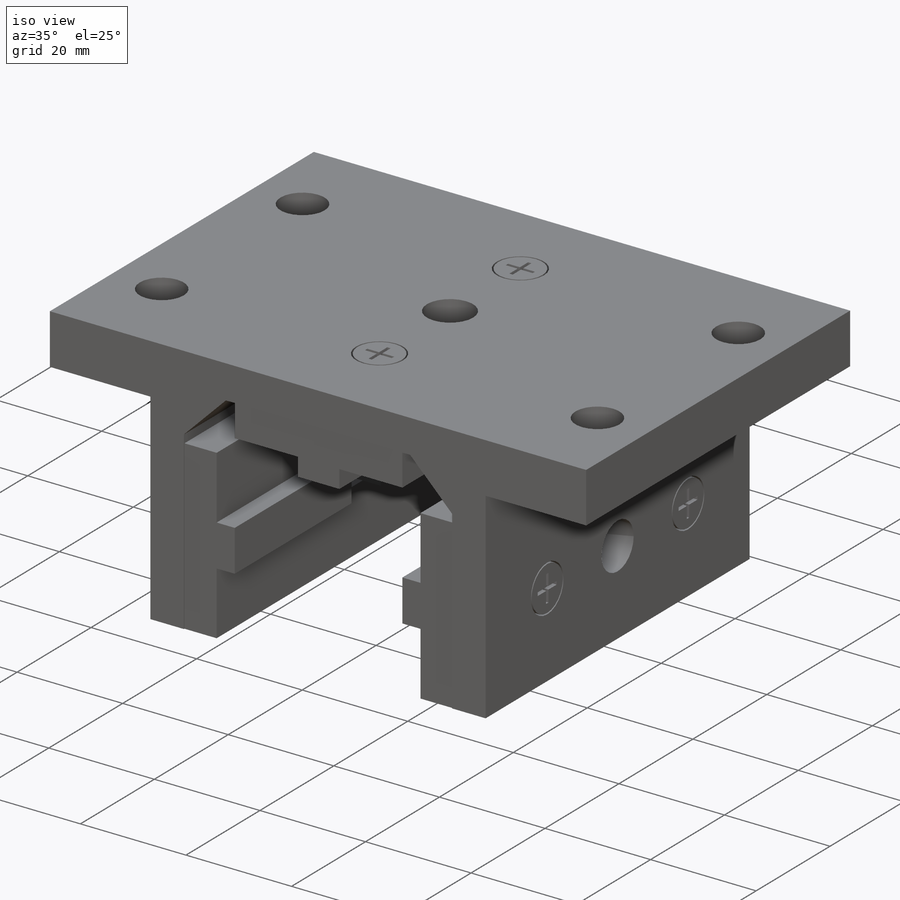
[diagram: iso view]
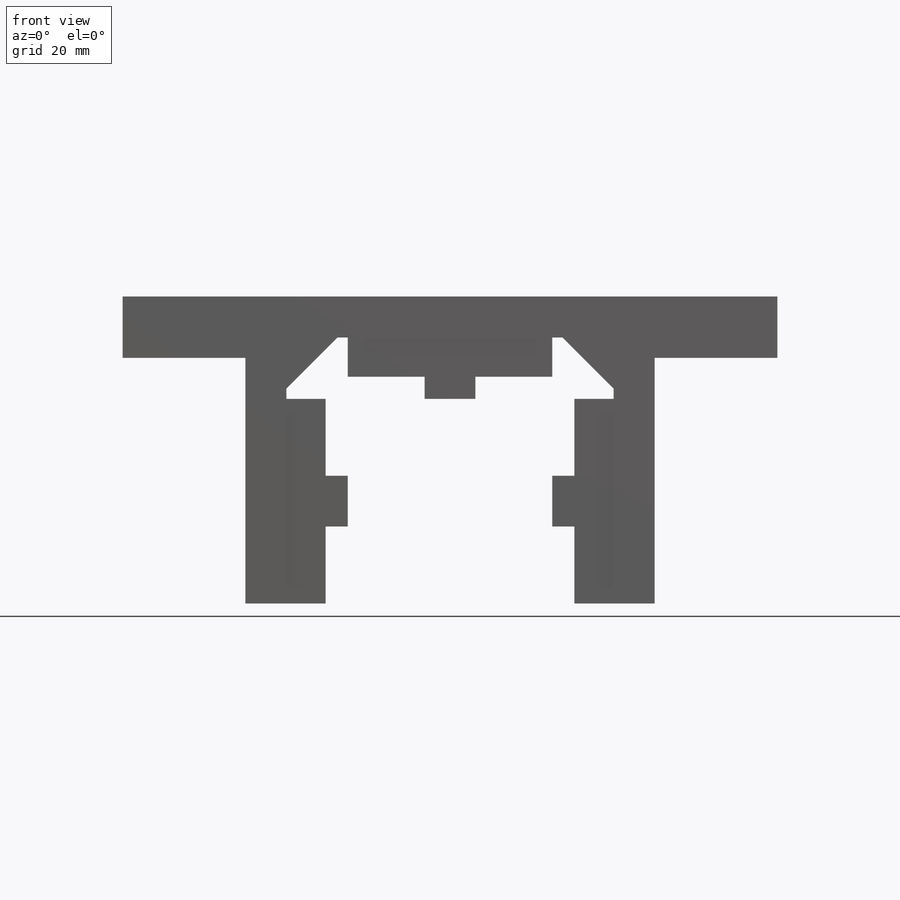
[diagram: front view]
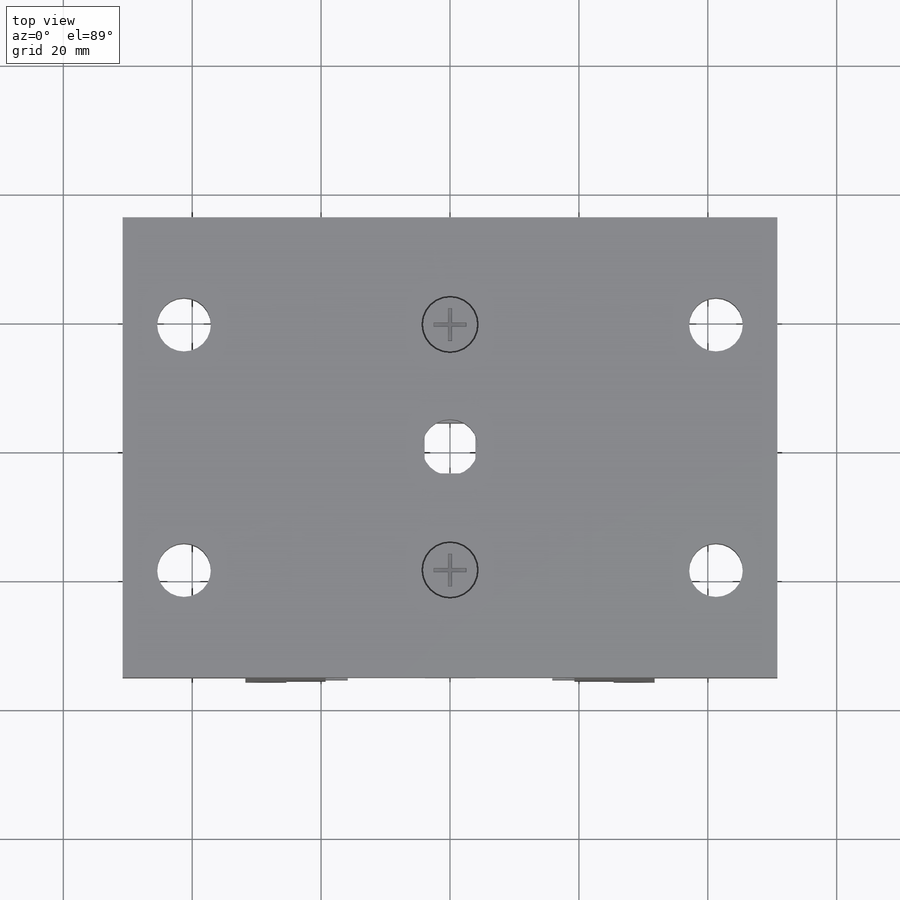
[diagram: top view]
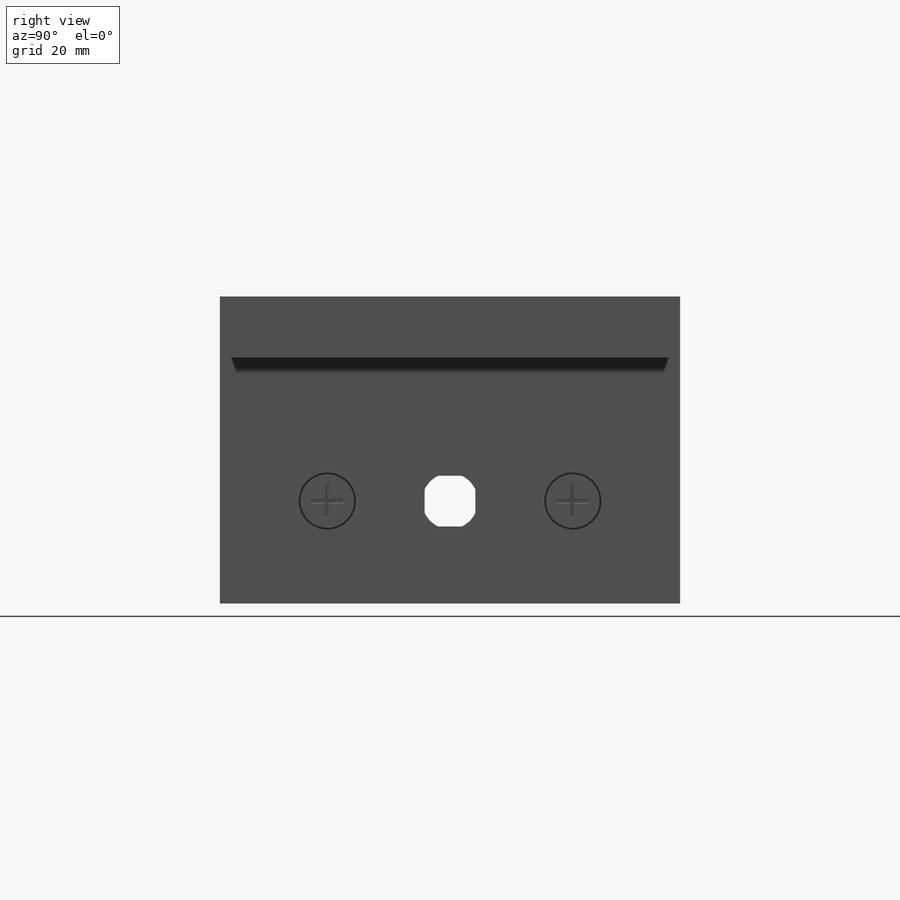
[diagram: right view]
SOLIDWORKS PART (.sldprt)
format: sldprt  version: not decoded by parser v0  size: 520,704 bytes
history: native  units: mm
features: sketch x12, cut_extrude x8, extrude x3, mirror x3, material x1 (+14 scaffold rows collapsed)
feature tree (41):
  scaffold x14  (default folders/planes/origin — collapsed)
  material  "Material <not specified>"
  sketch  "Sketch1"  dims[c1.Oall Ht=47.625mm c1.Base Wd=63.5mm c1.D2=~4.614919mm c2.D2=45.0deg c2.D3=~21.614855mm c2.Leg Thick=6.35mm c2.Top Thick=6.35mm c2.Pad Wd=20.6248mm c2.Peak Wd=34.8996mm]
  extrude  "Boss-Extrude1"  Depth=71.4248mm Lg=71.4248mm
  sketch  "Sketch2"  dims[Pad Wd=31.75mm Pad Thick 1=9.525mm Pad Thick 2=6.096mm Pad Nose=7.874mm]
  extrude  "Boss-Extrude2"  Depth=71.12mm Pad Lg=71.12mm
  sketch  "Sketch11"
  cut_extrude  "Cut-Extrude5"  [1 undecoded]
  sketch  "Sketch12"
  cut_extrude  "Cut-Extrude6"  [1 undecoded]
  mirror  "Mirror1"
  sketch  "Sketch3"  dims[Screw Head Dia=8.89mm Screw Spacing=38.1mm D1=0.254mm]
  cut_extrude  "Cut-Extrude1"  Depth=3.175mm
  sketch  "Sketch5"  dims[D1=0.635mm D2=5.08mm]
  cut_extrude  "Cut-Extrude2"  Depth=0.762mm
  sketch  "Sketch13"  dims[c1.D1=8.89mm c2.D1=3.175mm c2.D5=0.254mm c2.D6=2.54mm c2.D7=5.0mm]
  sketch  "Sketch14"  dims[D1=0.635mm D2=5.08mm]
  cut_extrude  "Cut-Extrude7"  Depth=0.762mm
  mirror  "Mirror4"
  mirror  "Mirror3"
  sketch  "Sketch9"  dims[Top Hole Dia=8.7122mm]
  cut_extrude  "Cut-Extrude4"  [1 undecoded]
  sketch  "Sketch15"  dims[Side Wall Hole Dia=8.7122mm]
  cut_extrude  "Cut-Extrude8"  [1 undecoded]
  sketch  "Sketch16"  dims[Oall Wd=101.6mm Top Flange Thickness=9.525mm]
  extrude  "Top Flange"  [1 undecoded]
  sketch  "Sketch17"  dims[Top Flange Hole Dia=8.3312mm Top Flange Hole Spacing=82.55mm]
  cut_extrude  "Top Flange Hole"  [1 undecoded]
decode coverage: 15 of 26 modeling features carry decoded parameters
note: ~ marks probable driven/reference dimensions
note: 6 parameter values undecoded
summary: no parameter record found for 6 features
note: suppression state not decoded; provenance and decode notes live in map.json
